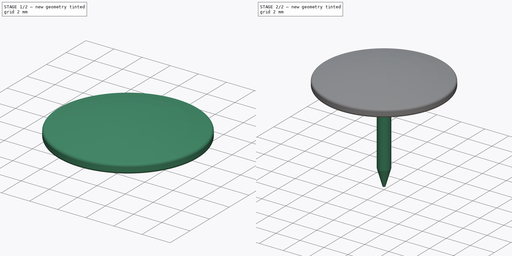
[diagram: build sequence overview — one tinted view per stage of 2, left to right]
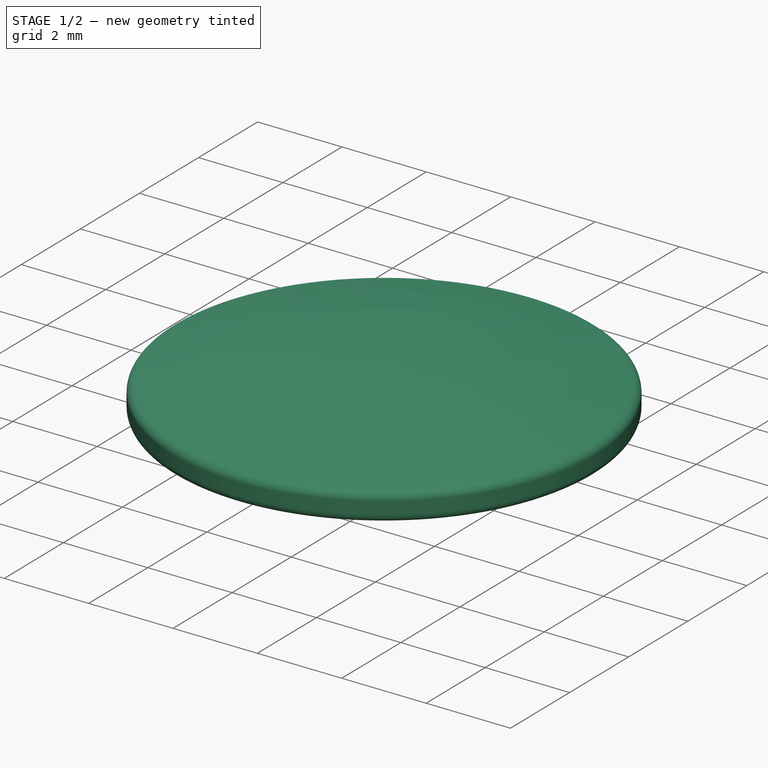
[diagram: stage 1 of 2 — iso view after this stage's code; geometry added in this stage tinted green]
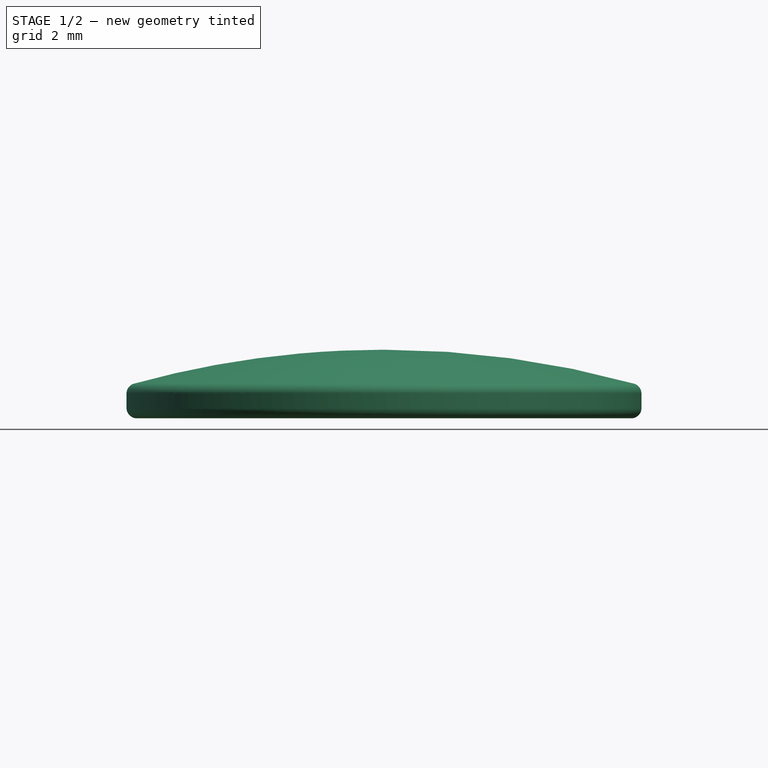
[diagram: stage 1 of 2 — front view after this stage's code; geometry added in this stage tinted green]
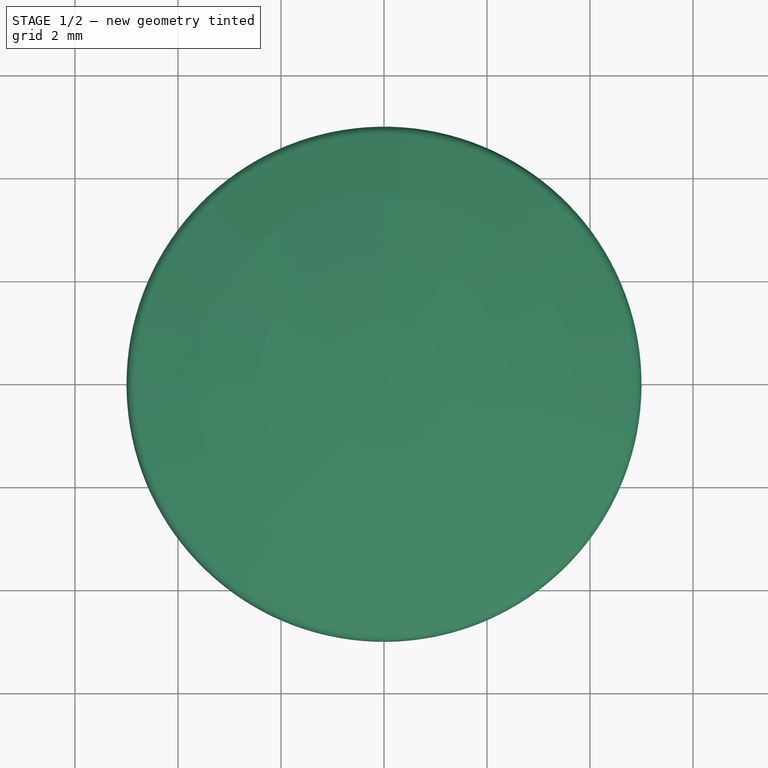
[diagram: stage 1 of 2 — top view after this stage's code; geometry added in this stage tinted green]
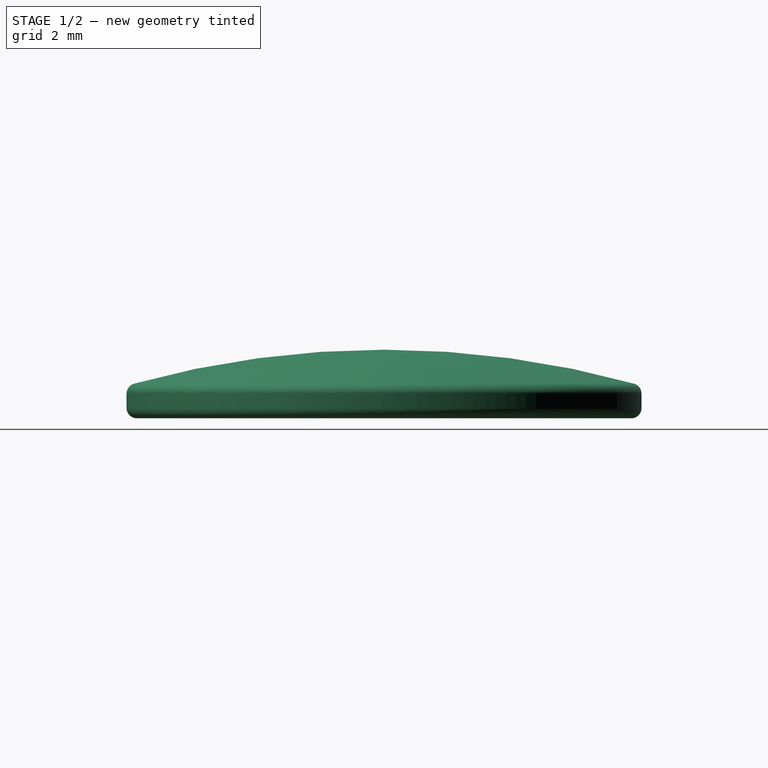
[diagram: stage 1 of 2 — right view after this stage's code; geometry added in this stage tinted green]
FCSTD DOCUMENT  (FreeCAD 0.17R13340 (Git))
Label: drawing-pin
License: All rights reserved
LicenseURL: http://en.wikipedia.org/wiki/All_rights_reserved
objects: Sketcher::SketchObject×2, PartDesign::Revolution×2, PartDesign::Body×2, PartDesign::Fillet×1, App::Part×1
note: 9 computed .brp shape members not serialized (recipe doc carries the construction recipe); baked Part::Feature solids carry a one-line shape summary decoded from their .brp

FEATURE [Sketcher::SketchObject] Sketch  label="Head-sketch"
  MapMode = 5
  Placement = pos=(0,0,0) rot=(0,0.707107,0.707107;3.14159rad)
  Support = -> [XZ_Plane001]
  expr: Constraints[3] = 10 / 2
  sketch-geometry (9):
    g0: LineSegment StartX=5 StartY=0 StartZ=0 EndX=5 EndY=0.7 EndZ=0
    g1: ArcOfCircle CenterX=0 CenterY=-16.8071 CenterZ=0 NormalX=0 NormalY=0 NormalZ=1 AngleXU=0 Radius=18.2071 StartAngle=1.2926 EndAngle=1.5708
    g2: LineSegment StartX=-2e-12 StartY=1.4 StartZ=0 EndX=-2e-12 EndY=0.7 EndZ=0
    g3: LineSegment StartX=0.62 StartY=0.3 StartZ=0 EndX=1.225 EndY=0.7 EndZ=0
    g4: ArcOfCircle CenterX=0 CenterY=-16.4353 CenterZ=0 NormalX=0 NormalY=0 NormalZ=1 AngleXU=0 Radius=17.179 StartAngle=1.27547 EndAngle=1.49943
    g5: LineSegment StartX=0.62 StartY=0.3 StartZ=0 EndX=0.52 EndY=0.3 EndZ=0
    g6: LineSegment StartX=0.52 StartY=0.3 StartZ=0 EndX=0.52 EndY=0.7 EndZ=0
    g7: LineSegment StartX=0.52 StartY=0.7 StartZ=0 EndX=-2e-12 EndY=0.7 EndZ=0
    g8: LineSegment StartX=-2e-12 StartY=0.7 StartZ=0 EndX=0.52 EndY=0.7 EndZ=0
  constraints (28):
    c: PointOnObject(g0,g-1)
    c: Vertical(g0)
    c: DistanceY(g0,g0) = 0.7
    c: DistanceX(g-1,g0) = 5
    c: PointOnObject(g1,g-2)
    c: Coincident(g1,g0)
    c: PointOnObject(g1,g-2)
    c: DistanceY(g-1,g1) = 1.4
    c: Coincident(g2,g1)
    c: Vertical(g2)
    c: Equal(g2,g0)
    c: DistanceX(g2,g3) = 1.225
    c: PointOnObject(g4,g-2)
    c: Coincident(g4,g3)
    c: Coincident(g4,g0)
    c: Coincident(g3,g5)
    c: Horizontal(g5)
    c: Coincident(g5,g6)
    c: Vertical(g6)
    c: Coincident(g6,g7)
    c: Coincident(g7,g2)
    c: Coincident(g8,g2)
    c: Coincident(g8,g6)
    c: DistanceX(g5,g5) = 0.1
    c: Horizontal(g7)
    c: PointOnObject(g3,g7)
    c: DistanceX(g7,g7) = 0.52
    c: DistanceY(g5,g6) = 0.4
FEATURE [PartDesign::Revolution] Revolution  label="Head-revolution"
  Angle = 360
  Axis = (0,0,1)
  Base = (0,0,0)
  Placement = pos=(0,0,0) rot=(1,0,0;1.5708rad)
  Profile = -> Sketch
  ReferenceAxis = -> Sketch [V_Axis]
  Refine = true
  Reversed = true
FEATURE [PartDesign::Body] Revolution001Body  label="Pin"
  Group = -> [Sketch001,Revolution001]
  Origin = -> Origin002
  Tip = -> Revolution001
FEATURE [PartDesign::Fillet] Fillet
  Base = -> Revolution [Edge9,Edge7]
  BaseFeature = -> Revolution
  Placement = pos=(0,0,0) rot=(1,0,0;1.5708rad)
  Radius = 0.2
FEATURE [PartDesign::Body] FilletBody  label="Head"
  Group = -> [Sketch,Revolution,Fillet]
  Origin = -> Origin001
  Tip = -> Fillet
FEATURE [App::Part] Part  label="Drawing-pin-part"
  Group = -> [FilletBody,Revolution001Body]
  License = CC BY 3.0
  LicenseURL = http://creativecommons.org/licenses/by/3.0/
  Origin = -> Origin
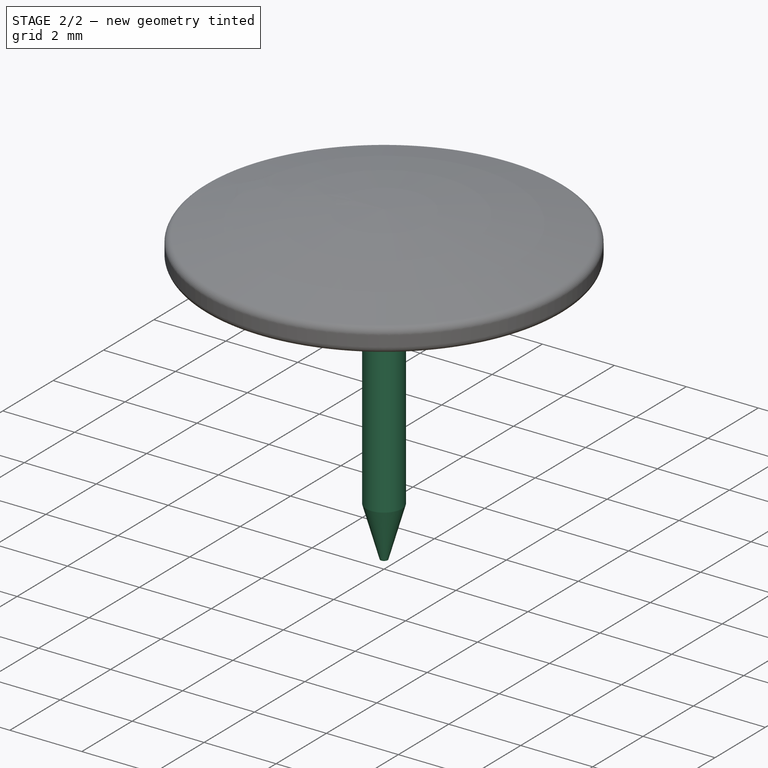
[diagram: stage 2 of 2 — iso view after this stage's code; geometry added in this stage tinted green]
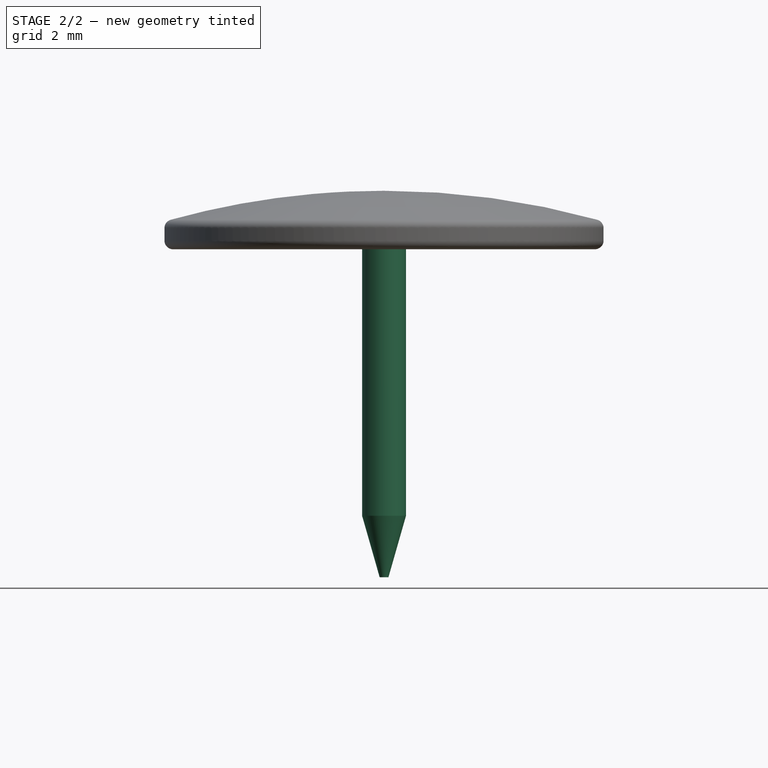
[diagram: stage 2 of 2 — front view after this stage's code; geometry added in this stage tinted green]
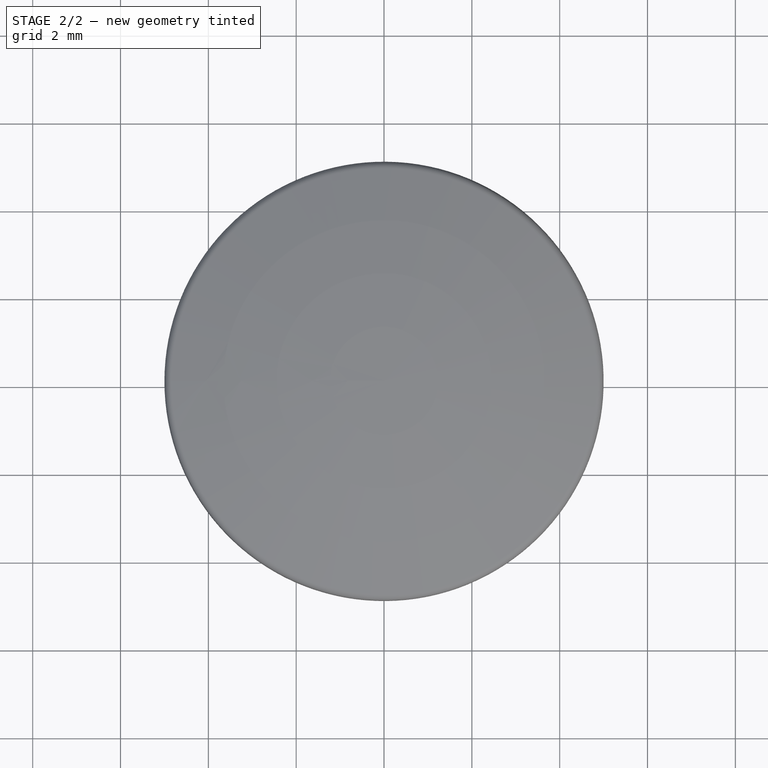
[diagram: stage 2 of 2 — top view after this stage's code; geometry added in this stage tinted green]
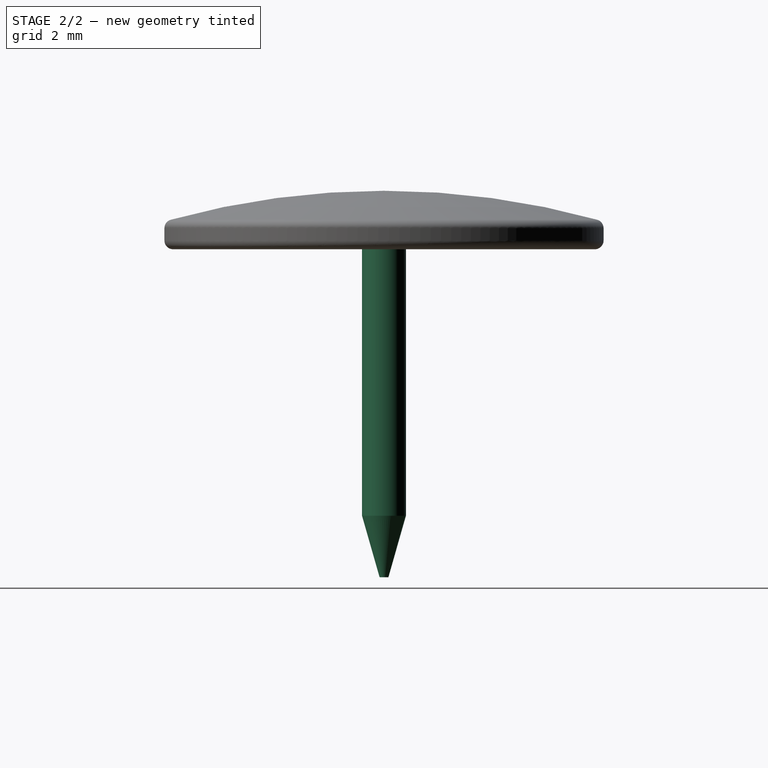
[diagram: stage 2 of 2 — right view after this stage's code; geometry added in this stage tinted green]
FEATURE [Sketcher::SketchObject] Sketch001  label="pin-sketch"
  MapMode = 5
  Placement = pos=(0,0,0) rot=(1,0,0;1.5708rad)
  expr: Constraints[15] = 0.20000000000000001 / 2
  sketch-geometry (6):
    g0: LineSegment StartX=0 StartY=0 StartZ=0 EndX=0 EndY=0.9 EndZ=0
    g1: LineSegment StartX=0 StartY=0.9 StartZ=0 EndX=0.5 EndY=0.9 EndZ=0
    g2: LineSegment StartX=0.5 StartY=0.9 StartZ=0 EndX=0.5 EndY=-6 EndZ=0
    g3: LineSegment StartX=0.5 StartY=-6 StartZ=0 EndX=0.1 EndY=-7.4 EndZ=0
    g4: LineSegment StartX=0.1 StartY=-7.4 StartZ=0 EndX=0 EndY=-7.4 EndZ=0
    g5: LineSegment StartX=0 StartY=-7.4 StartZ=0 EndX=0 EndY=0 EndZ=0
  constraints (17):
    c: Coincident(g-1,g0)
    c: Vertical(g0)
    c: Coincident(g0,g1)
    c: Horizontal(g1)
    c: Coincident(g1,g2)
    c: Vertical(g2)
    c: Coincident(g2,g3)
    c: Coincident(g3,g4)
    c: Horizontal(g4)
    c: Coincident(g4,g5)
    c: Coincident(g5,g0)
    c: Vertical(g5)
    c: DistanceX(g1,g1) = 0.5
    c: DistanceY(g5,g5) = 7.4
    c: DistanceY(g3,g2) = 1.4
    c: DistanceX(g4,g4) = 0.1
    c: DistanceY(g0,g0) = 0.9
FEATURE [PartDesign::Revolution] Revolution001  label="pin-revolution"
  Angle = 360
  Axis = (0,0,1)
  Base = (0,0,0)
  Placement = pos=(0,0,0) rot=(1,0,0;1.5708rad)
  Profile = -> Sketch001
  ReferenceAxis = -> Sketch001 [V_Axis]
  Refine = true
  Reversed = true
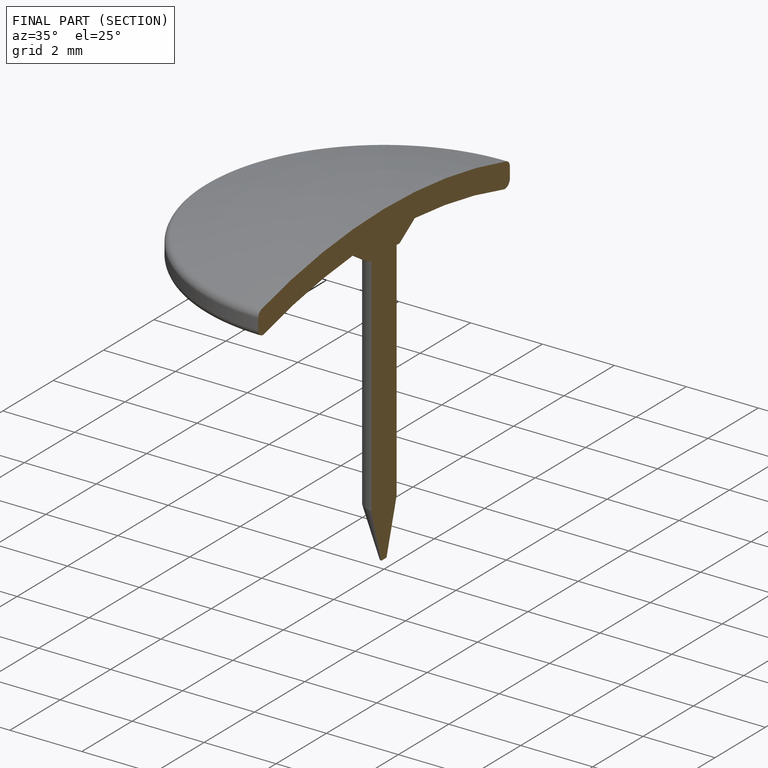
[diagram: finished part — half-section view (interior)]
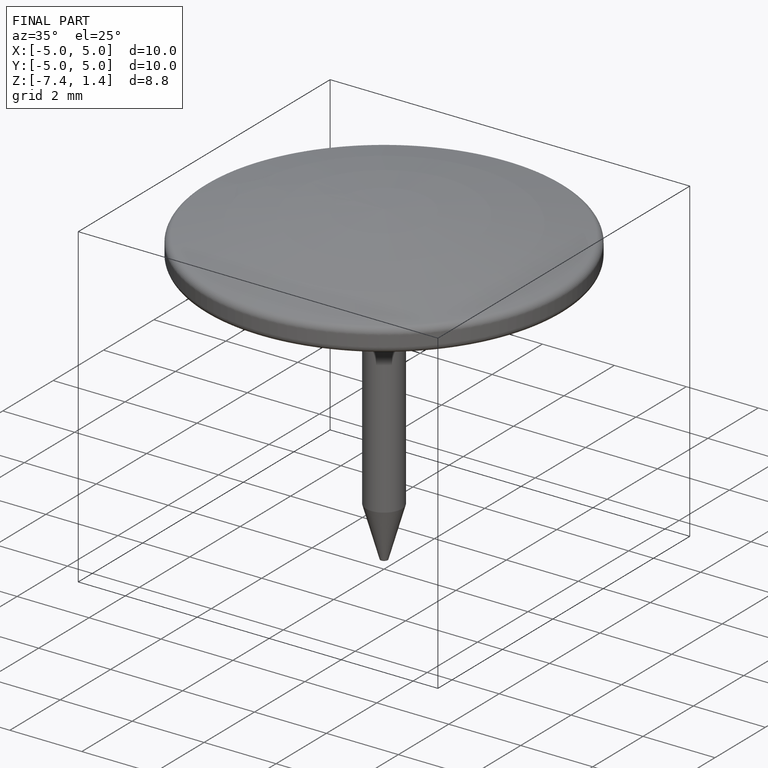
[diagram: finished part — iso view with bounding-box wireframe]
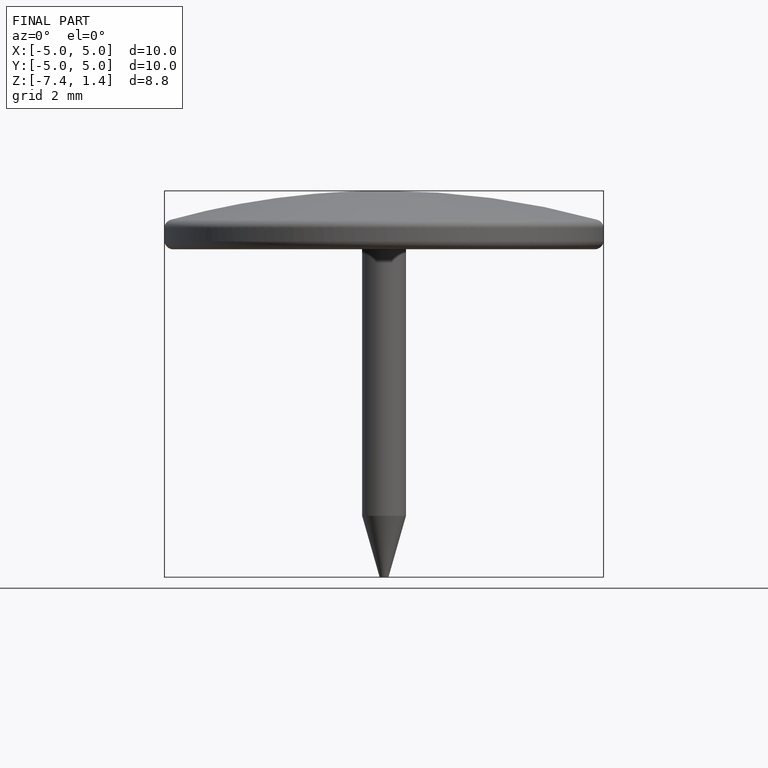
[diagram: finished part — front view with bounding-box wireframe]
